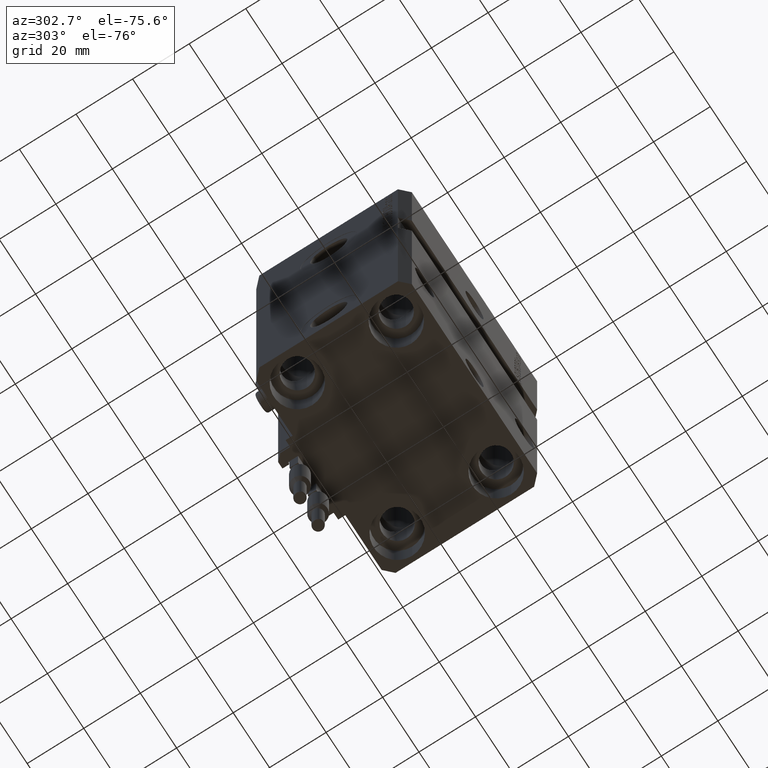
[diagram: clean part render]
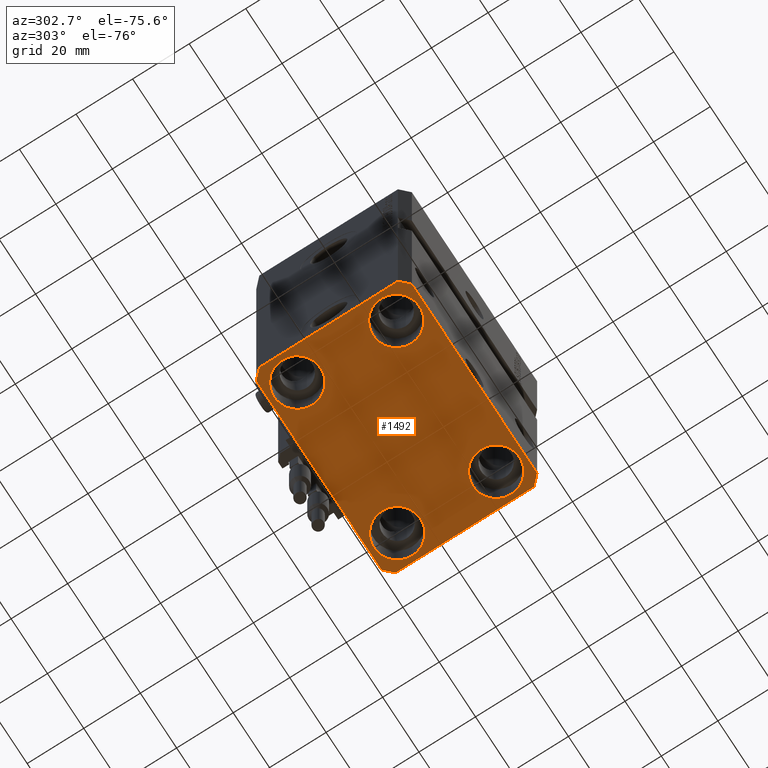
[diagram: same view with one face highlighted and labeled with its STEP entity id]
A machine part, auxiliary view. The second image highlights one B-rep face of the part: STEP entity #1492.
In plain terms, the highlighted planar face has unit normal (0, 0, 1).
Its self-contained STEP definition (entity closure, byte-faithful):
#70 = EDGE_LOOP ( 'NONE', ( #49035, #7507, #31041, #9564, #2518, #39748, #15871, #43568 ) ) ;
#326 = CARTESIAN_POINT ( 'NONE',  ( 35.75000000000000711, -17.50000000000000000, -110.0000000000000000 ) ) ;
#487 = EDGE_CURVE ( 'NONE', #31447, #3813, #34851, .T. ) ;
#957 = VERTEX_POINT ( 'NONE', #37956 ) ;
#1057 = VECTOR ( 'NONE', #12450, 1000.000000000000000 ) ;
#1400 = CARTESIAN_POINT ( 'NONE',  ( -34.49999999999998579, -27.49999999999999645, -110.0000000000000000 ) ) ;
#1492 = ADVANCED_FACE ( 'NONE', ( #21008, #36357, #33091, #17234, #48148 ), #47906, .F. ) ;
#1620 = EDGE_LOOP ( 'NONE', ( #12576, #38298 ) ) ;
#2007 = EDGE_CURVE ( 'NONE', #3813, #13214, #20519, .T. ) ;
#2120 = CIRCLE ( 'NONE', #4545, 8.249999999999992895 ) ;
#2518 = ORIENTED_EDGE ( 'NONE', *, *, #2007, .F. ) ;
#3813 = VERTEX_POINT ( 'NONE', #1400 ) ;
#3934 = DIRECTION ( 'NONE',  ( -0.000000000000000000, -0.000000000000000000, 1.000000000000000000 ) ) ;
#4117 = CARTESIAN_POINT ( 'NONE',  ( 27.49999999999999645, 17.50000000000001066, -110.0000000000000000 ) ) ;
#4339 = EDGE_CURVE ( 'NONE', #18072, #11728, #42829, .T. ) ;
#4487 = EDGE_CURVE ( 'NONE', #37963, #31447, #26462, .T. ) ;
#4545 = AXIS2_PLACEMENT_3D ( 'NONE', #33986, #22904, #49055 ) ;
#4693 = CARTESIAN_POINT ( 'NONE',  ( 35.74999999999999289, 17.50000000000001066, -110.0000000000000000 ) ) ;
#5621 = CARTESIAN_POINT ( 'NONE',  ( -34.49999999999999289, 27.50000000000000000, -110.0000000000000000 ) ) ;
#5740 = VERTEX_POINT ( 'NONE', #5621 ) ;
#5883 = LINE ( 'NONE', #28536, #14331 ) ;
#6162 = CARTESIAN_POINT ( 'NONE',  ( 0.000000000000000000, 0.000000000000000000, -110.0000000000000000 ) ) ;
#6746 = VECTOR ( 'NONE', #47406, 1000.000000000000000 ) ;
#7507 = ORIENTED_EDGE ( 'NONE', *, *, #30247, .F. ) ;
#8059 = CARTESIAN_POINT ( 'NONE',  ( 34.49999999999999289, -27.49999999999999645, -110.0000000000000000 ) ) ;
#8095 = EDGE_CURVE ( 'NONE', #29521, #47324, #41380, .T. ) ;
#8438 = EDGE_LOOP ( 'NONE', ( #48026, #46287 ) ) ;
#8812 = LINE ( 'NONE', #38758, #46932 ) ;
#8933 = AXIS2_PLACEMENT_3D ( 'NONE', #31343, #3934, #19277 ) ;
#8981 = CARTESIAN_POINT ( 'NONE',  ( 27.50000000000000355, -17.50000000000000000, -110.0000000000000000 ) ) ;
#9564 = ORIENTED_EDGE ( 'NONE', *, *, #47487, .F. ) ;
#10217 = CARTESIAN_POINT ( 'NONE',  ( 19.25000000000000000, -17.50000000000000000, -110.0000000000000000 ) ) ;
#10384 = ORIENTED_EDGE ( 'NONE', *, *, #36240, .T. ) ;
#10913 = CARTESIAN_POINT ( 'NONE',  ( -27.50000000000000355, -17.50000000000000000, -110.0000000000000000 ) ) ;
#10926 = EDGE_CURVE ( 'NONE', #11728, #18072, #2120, .T. ) ;
#11728 = VERTEX_POINT ( 'NONE', #4693 ) ;
#11968 = AXIS2_PLACEMENT_3D ( 'NONE', #36747, #17876, #36988 ) ;
#12450 = DIRECTION ( 'NONE',  ( 0.7071067811865483499, -0.7071067811865466846, 0.000000000000000000 ) ) ;
#12576 = ORIENTED_EDGE ( 'NONE', *, *, #8095, .T. ) ;
#12864 = AXIS2_PLACEMENT_3D ( 'NONE', #31475, #16633, #39752 ) ;
#13214 = VERTEX_POINT ( 'NONE', #8059 ) ;
#14194 = LINE ( 'NONE', #25258, #25720 ) ;
#14196 = VERTEX_POINT ( 'NONE', #10217 ) ;
#14331 = VECTOR ( 'NONE', #24506, 1000.000000000000000 ) ;
#14998 = EDGE_LOOP ( 'NONE', ( #10384, #34966 ) ) ;
#15157 = EDGE_CURVE ( 'NONE', #35671, #957, #5883, .T. ) ;
#15396 = EDGE_CURVE ( 'NONE', #28230, #5740, #19428, .T. ) ;
#15871 = ORIENTED_EDGE ( 'NONE', *, *, #4487, .F. ) ;
#16625 = LINE ( 'NONE', #24409, #33688 ) ;
#16633 = DIRECTION ( 'NONE',  ( -0.000000000000000000, -0.000000000000000000, 1.000000000000000000 ) ) ;
#17196 = AXIS2_PLACEMENT_3D ( 'NONE', #6162, #44390, #25277 ) ;
#17234 = FACE_BOUND ( 'NONE', #14998, .T. ) ;
#17416 = CARTESIAN_POINT ( 'NONE',  ( -27.50000000000000355, -17.50000000000000000, -110.0000000000000000 ) ) ;
#17569 = VECTOR ( 'NONE', #38549, 1000.000000000000000 ) ;
#17876 = DIRECTION ( 'NONE',  ( -0.000000000000000000, -0.000000000000000000, 1.000000000000000000 ) ) ;
#18072 = VERTEX_POINT ( 'NONE', #46635 ) ;
#18117 = AXIS2_PLACEMENT_3D ( 'NONE', #17416, #32762, #25944 ) ;
#19265 = EDGE_CURVE ( 'NONE', #47324, #29521, #26387, .T. ) ;
#19277 = DIRECTION ( 'NONE',  ( 1.000000000000000000, 0.000000000000000000, 0.000000000000000000 ) ) ;
#19428 = LINE ( 'NONE', #31249, #17569 ) ;
#19466 = DIRECTION ( 'NONE',  ( -0.000000000000000000, -0.000000000000000000, 1.000000000000000000 ) ) ;
#19531 = VECTOR ( 'NONE', #41071, 1000.000000000000000 ) ;
#19954 = EDGE_CURVE ( 'NONE', #5740, #37963, #16625, .T. ) ;
#20099 = EDGE_CURVE ( 'NONE', #27624, #28743, #20816, .T. ) ;
#20519 = LINE ( 'NONE', #32090, #6746 ) ;
#20816 = CIRCLE ( 'NONE', #11968, 8.250000000000000000 ) ;
#20969 = CIRCLE ( 'NONE', #8933, 8.250000000000000000 ) ;
#21008 = FACE_BOUND ( 'NONE', #1620, .T. ) ;
#21136 = CARTESIAN_POINT ( 'NONE',  ( 37.49999999999999289, -24.50000000000000000, -110.0000000000000000 ) ) ;
#22402 = CARTESIAN_POINT ( 'NONE',  ( 34.50000000000056843, 27.50000000000000000, -110.0000000000000000 ) ) ;
#22904 = DIRECTION ( 'NONE',  ( -0.000000000000000000, -0.000000000000000000, 1.000000000000000000 ) ) ;
#23424 = DIRECTION ( 'NONE',  ( -0.7071067811865471286, -0.7071067811865479058, 0.000000000000000000 ) ) ;
#23529 = CARTESIAN_POINT ( 'NONE',  ( -37.49999999999999289, -24.50000000000000000, -110.0000000000000000 ) ) ;
#23556 = EDGE_CURVE ( 'NONE', #14196, #39944, #45804, .T. ) ;
#23721 = CIRCLE ( 'NONE', #43828, 8.250000000000000000 ) ;
#24409 = CARTESIAN_POINT ( 'NONE',  ( -34.49999999999999289, 27.50000000000000000, -110.0000000000000000 ) ) ;
#24506 = DIRECTION ( 'NONE',  ( 1.076236605503979380E-14, 1.000000000000000000, 0.000000000000000000 ) ) ;
#25239 = CARTESIAN_POINT ( 'NONE',  ( -37.49999999999999289, 24.50000000000000000, -110.0000000000000000 ) ) ;
#25258 = CARTESIAN_POINT ( 'NONE',  ( 37.50000000000051870, 24.49999999999995381, -110.0000000000000000 ) ) ;
#25277 = DIRECTION ( 'NONE',  ( 1.000000000000000000, 0.000000000000000000, -0.000000000000000000 ) ) ;
#25720 = VECTOR ( 'NONE', #25757, 1000.000000000000114 ) ;
#25757 = DIRECTION ( 'NONE',  ( -0.7071067811865356934, 0.7071067811865594521, 0.000000000000000000 ) ) ;
#25944 = DIRECTION ( 'NONE',  ( 1.000000000000000000, 0.000000000000000000, 0.000000000000000000 ) ) ;
#26387 = CIRCLE ( 'NONE', #37665, 8.250000000000000000 ) ;
#26462 = LINE ( 'NONE', #45084, #19531 ) ;
#27117 = DIRECTION ( 'NONE',  ( -0.000000000000000000, -0.000000000000000000, 1.000000000000000000 ) ) ;
#27438 = DIRECTION ( 'NONE',  ( 0.7071067811865474617, 0.7071067811865474617, 0.000000000000000000 ) ) ;
#27624 = VERTEX_POINT ( 'NONE', #40736 ) ;
#27819 = EDGE_LOOP ( 'NONE', ( #40503, #38821 ) ) ;
#28230 = VERTEX_POINT ( 'NONE', #22402 ) ;
#28536 = CARTESIAN_POINT ( 'NONE',  ( 37.49999999999999289, -24.50000000000000000, -110.0000000000000000 ) ) ;
#28743 = VERTEX_POINT ( 'NONE', #36643 ) ;
#29521 = VERTEX_POINT ( 'NONE', #30145 ) ;
#30145 = CARTESIAN_POINT ( 'NONE',  ( -35.75000000000000711, -17.50000000000000000, -110.0000000000000000 ) ) ;
#30247 = EDGE_CURVE ( 'NONE', #957, #28230, #14194, .T. ) ;
#31041 = ORIENTED_EDGE ( 'NONE', *, *, #15157, .F. ) ;
#31249 = CARTESIAN_POINT ( 'NONE',  ( 34.50000000000056843, 27.50000000000000000, -110.0000000000000000 ) ) ;
#31343 = CARTESIAN_POINT ( 'NONE',  ( -27.50000000000000355, 17.50000000000000000, -110.0000000000000000 ) ) ;
#31447 = VERTEX_POINT ( 'NONE', #40357 ) ;
#31475 = CARTESIAN_POINT ( 'NONE',  ( 27.50000000000000355, -17.50000000000000000, -110.0000000000000000 ) ) ;
#32090 = CARTESIAN_POINT ( 'NONE',  ( -34.49999999999998579, -27.49999999999999645, -110.0000000000000000 ) ) ;
#32762 = DIRECTION ( 'NONE',  ( -0.000000000000000000, -0.000000000000000000, 1.000000000000000000 ) ) ;
#33091 = FACE_BOUND ( 'NONE', #8438, .T. ) ;
#33688 = VECTOR ( 'NONE', #23424, 1000.000000000000000 ) ;
#33986 = CARTESIAN_POINT ( 'NONE',  ( 27.49999999999999645, 17.50000000000001066, -110.0000000000000000 ) ) ;
#34313 = DIRECTION ( 'NONE',  ( -0.000000000000000000, -0.000000000000000000, 1.000000000000000000 ) ) ;
#34851 = LINE ( 'NONE', #23529, #1057 ) ;
#34966 = ORIENTED_EDGE ( 'NONE', *, *, #20099, .T. ) ;
#35565 = DIRECTION ( 'NONE',  ( 1.000000000000000000, 0.000000000000000000, 0.000000000000000000 ) ) ;
#35631 = AXIS2_PLACEMENT_3D ( 'NONE', #4117, #19466, #35565 ) ;
#35671 = VERTEX_POINT ( 'NONE', #21136 ) ;
#36240 = EDGE_CURVE ( 'NONE', #28743, #27624, #20969, .T. ) ;
#36357 = FACE_BOUND ( 'NONE', #27819, .T. ) ;
#36643 = CARTESIAN_POINT ( 'NONE',  ( -35.75000000000000711, 17.50000000000000000, -110.0000000000000000 ) ) ;
#36747 = CARTESIAN_POINT ( 'NONE',  ( -27.50000000000000355, 17.50000000000000000, -110.0000000000000000 ) ) ;
#36988 = DIRECTION ( 'NONE',  ( 1.000000000000000000, 0.000000000000000000, 0.000000000000000000 ) ) ;
#37665 = AXIS2_PLACEMENT_3D ( 'NONE', #10913, #34313, #45864 ) ;
#37956 = CARTESIAN_POINT ( 'NONE',  ( 37.50000000000051870, 24.49999999999995381, -110.0000000000000000 ) ) ;
#37963 = VERTEX_POINT ( 'NONE', #25239 ) ;
#38298 = ORIENTED_EDGE ( 'NONE', *, *, #19265, .T. ) ;
#38549 = DIRECTION ( 'NONE',  ( -1.000000000000000000, 0.000000000000000000, 0.000000000000000000 ) ) ;
#38758 = CARTESIAN_POINT ( 'NONE',  ( 34.49999999999999289, -27.49999999999999645, -110.0000000000000000 ) ) ;
#38821 = ORIENTED_EDGE ( 'NONE', *, *, #49008, .T. ) ;
#39417 = DIRECTION ( 'NONE',  ( 1.000000000000000000, 0.000000000000000000, 0.000000000000000000 ) ) ;
#39748 = ORIENTED_EDGE ( 'NONE', *, *, #487, .F. ) ;
#39752 = DIRECTION ( 'NONE',  ( 1.000000000000000000, 0.000000000000000000, 0.000000000000000000 ) ) ;
#39944 = VERTEX_POINT ( 'NONE', #326 ) ;
#40357 = CARTESIAN_POINT ( 'NONE',  ( -37.49999999999999289, -24.50000000000000000, -110.0000000000000000 ) ) ;
#40503 = ORIENTED_EDGE ( 'NONE', *, *, #23556, .T. ) ;
#40736 = CARTESIAN_POINT ( 'NONE',  ( -19.25000000000000355, 17.50000000000000000, -110.0000000000000000 ) ) ;
#41071 = DIRECTION ( 'NONE',  ( 0.000000000000000000, -1.000000000000000000, 0.000000000000000000 ) ) ;
#41380 = CIRCLE ( 'NONE', #18117, 8.250000000000000000 ) ;
#42829 = CIRCLE ( 'NONE', #35631, 8.249999999999992895 ) ;
#43568 = ORIENTED_EDGE ( 'NONE', *, *, #19954, .F. ) ;
#43828 = AXIS2_PLACEMENT_3D ( 'NONE', #8981, #27117, #39417 ) ;
#44390 = DIRECTION ( 'NONE',  ( 0.000000000000000000, 0.000000000000000000, 1.000000000000000000 ) ) ;
#45084 = CARTESIAN_POINT ( 'NONE',  ( -37.49999999999999289, 24.50000000000000000, -110.0000000000000000 ) ) ;
#45323 = CARTESIAN_POINT ( 'NONE',  ( -19.25000000000000355, -17.50000000000000000, -110.0000000000000000 ) ) ;
#45804 = CIRCLE ( 'NONE', #12864, 8.250000000000000000 ) ;
#45864 = DIRECTION ( 'NONE',  ( 1.000000000000000000, 0.000000000000000000, 0.000000000000000000 ) ) ;
#46287 = ORIENTED_EDGE ( 'NONE', *, *, #10926, .T. ) ;
#46635 = CARTESIAN_POINT ( 'NONE',  ( 19.25000000000000000, 17.50000000000001066, -110.0000000000000000 ) ) ;
#46932 = VECTOR ( 'NONE', #27438, 1000.000000000000114 ) ;
#47324 = VERTEX_POINT ( 'NONE', #45323 ) ;
#47406 = DIRECTION ( 'NONE',  ( 1.000000000000000000, 0.000000000000000000, 0.000000000000000000 ) ) ;
#47487 = EDGE_CURVE ( 'NONE', #13214, #35671, #8812, .T. ) ;
#47906 = PLANE ( 'NONE',  #17196 ) ;
#48026 = ORIENTED_EDGE ( 'NONE', *, *, #4339, .T. ) ;
#48148 = FACE_OUTER_BOUND ( 'NONE', #70, .T. ) ;
#49008 = EDGE_CURVE ( 'NONE', #39944, #14196, #23721, .T. ) ;
#49035 = ORIENTED_EDGE ( 'NONE', *, *, #15396, .F. ) ;
#49055 = DIRECTION ( 'NONE',  ( 1.000000000000000000, 0.000000000000000000, 0.000000000000000000 ) ) ;